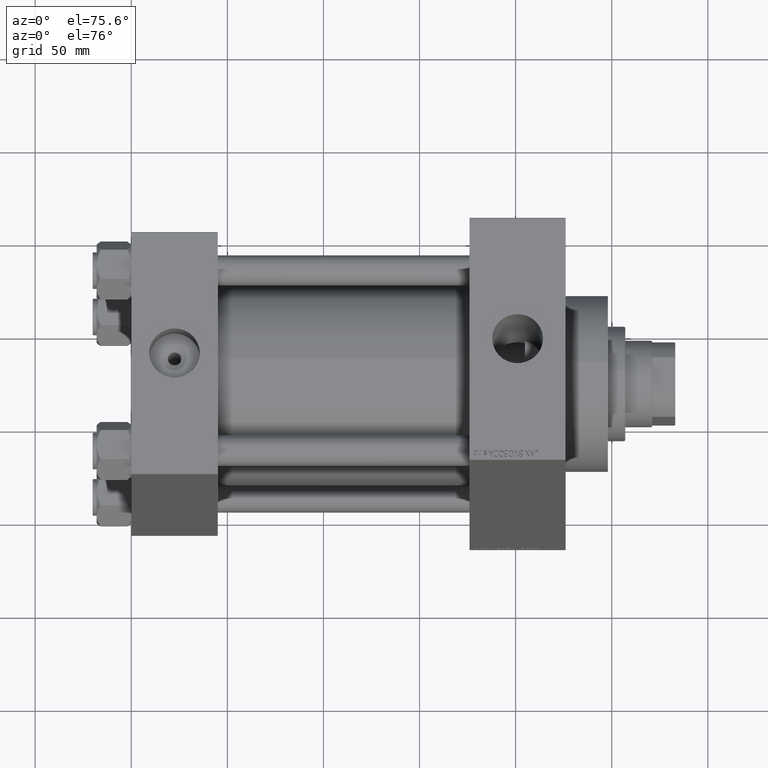
[diagram: clean part render]
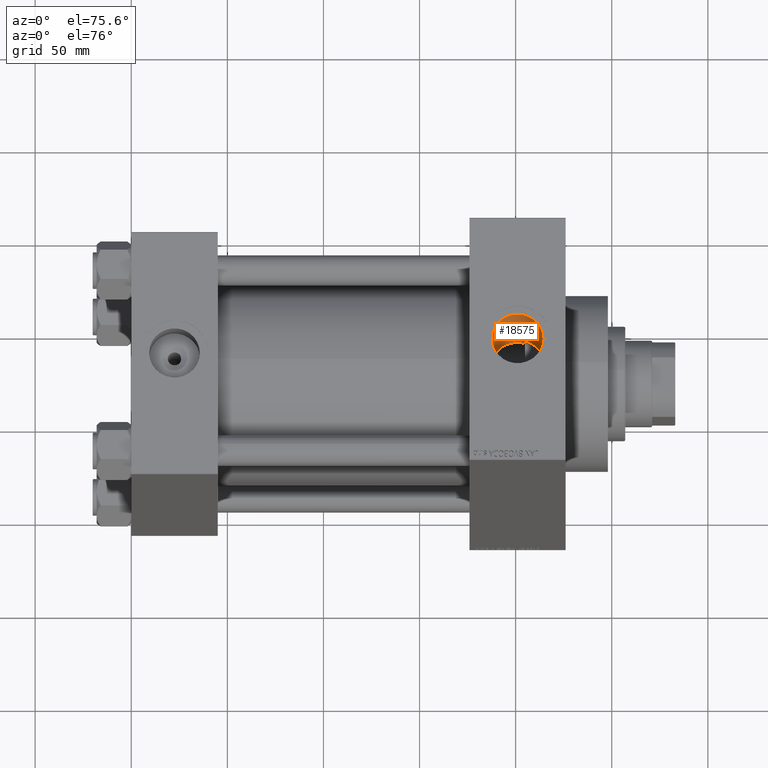
[diagram: same view with one face highlighted and labeled with its STEP entity id]
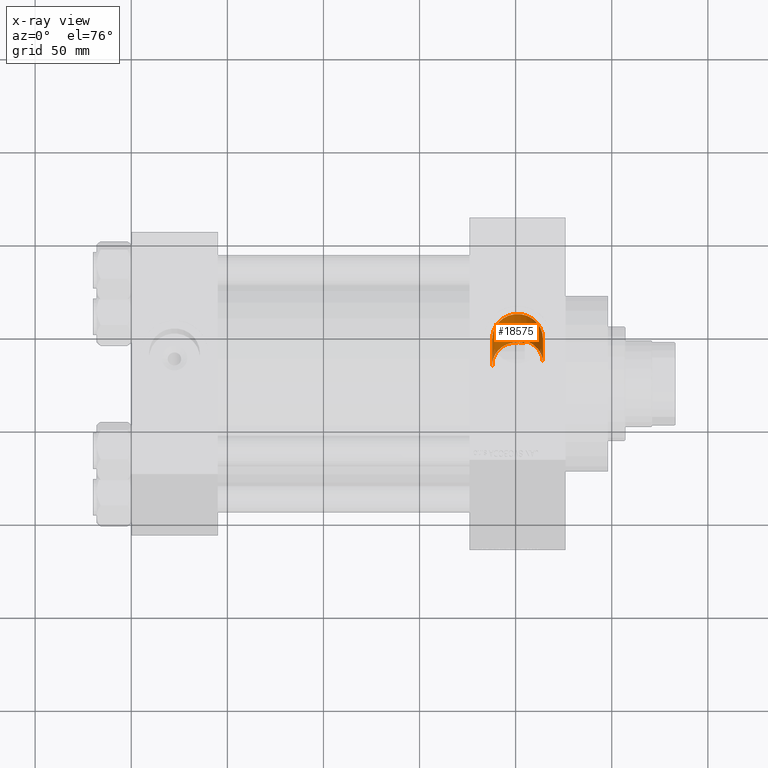
[diagram: x-ray of the same camera — body ghosted, the highlighted face saturated]
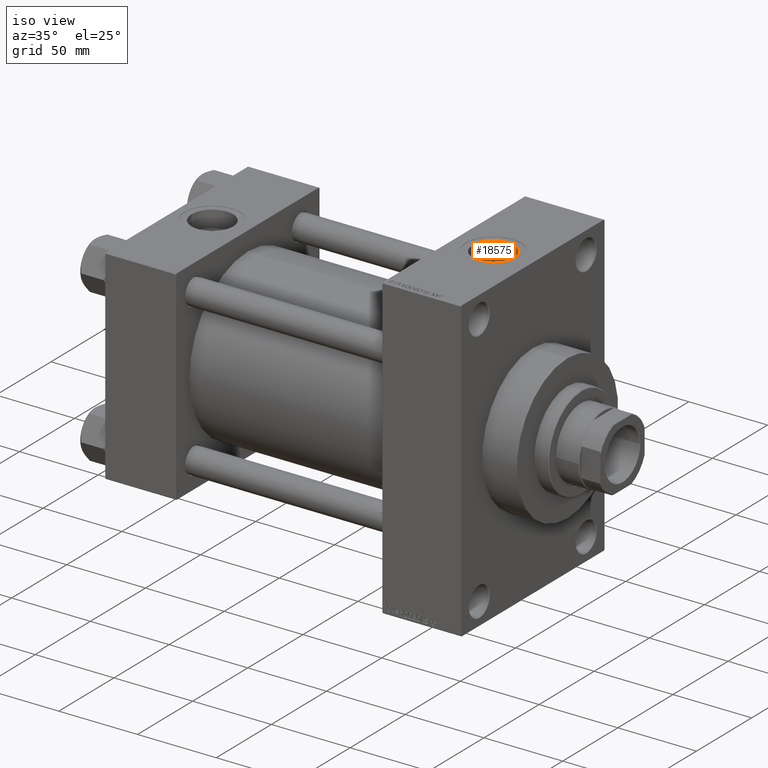
[diagram: same view with one face highlighted and labeled with its STEP entity id]
A machine part, auxiliary view. The second image highlights one B-rep face of the part: STEP entity #18575.
The next image is the same camera in x-ray: the body ghosted, the highlighted face saturated — about 3% of this face is hidden behind the body in this view.
A second angle (iso view) of the same face is appended — the face is thin or edge-on in the first view.
In plain terms, the highlighted cylindrical surface (edge-blend (fillet) strip) has radius 13.22 mm, axis along (0, 0, -1).
Its self-contained STEP definition (entity closure, byte-faithful):
#375 = CARTESIAN_POINT ( 'NONE',  ( 188.0207089073833515, 2.563288280031345234, 37.91676483506162043 ) ) ;
#519 = CARTESIAN_POINT ( 'NONE',  ( 207.3566742675306216, 11.61276551564071902, 41.14373320031093328 ) ) ;
#760 = CARTESIAN_POINT ( 'NONE',  ( 214.1627215507658377, 1.419340817186896642, 42.73218467206118021 ) ) ;
#990 = DIRECTION ( 'NONE',  ( 0.000000000000000000, 0.000000000000000000, -1.000000000000000000 ) ) ;
#1344 = CARTESIAN_POINT ( 'NONE',  ( 204.7399999999999807, 12.67993690836039455, 117.7999999999999545 ) ) ;
#2164 = B_SPLINE_CURVE_WITH_KNOTS ( 'NONE', 3,
 ( #22335, #25705, #7147, #15084, #375, #43520, #18001, #11242, #3526, #14137, #33622, #47630, #40859, #11475, #18949, #40152, #7622, #44473, #14848, #37010, #18475, #29066, #21864, #39919, #3997, #33155, #32680, #18712, #7856, #22098 ),
 .UNSPECIFIED., .F., .F.,
 ( 4, 2, 2, 2, 2, 2, 2, 2, 2, 2, 2, 2, 2, 2, 4 ),
 ( 0.04166013637941432673, 0.04319771166362021408, 0.04473528694782610143, 0.04781043751623787613, 0.04934801280044376348, 0.05088558808464965083, 0.05242316336885553818, 0.05396073865306142553, 0.05549831393726731288, 0.05703588922147320717, 0.06011103978988498187, 0.06164861507409087615, 0.06318619035829675656, 0.06472376564250265085, 0.06626134092670854514 ),
 .UNSPECIFIED. ) ;
#2603 = DIRECTION ( 'NONE',  ( 0.000000000000000000, 0.000000000000000000, -1.000000000000000000 ) ) ;
#3526 = CARTESIAN_POINT ( 'NONE',  ( 189.6766881679797336, 6.841684745575792093, 37.38151937335765496 ) ) ;
#3997 = CARTESIAN_POINT ( 'NONE',  ( 201.1929245059120035, 13.22853373566559476, 35.62312093936006363 ) ) ;
#4136 = CARTESIAN_POINT ( 'NONE',  ( 207.9652939437245323, 11.25862793121221017, 41.24295429618411646 ) ) ;
#4209 = CARTESIAN_POINT ( 'NONE',  ( 187.7799999999999443, 0.000000000000000000, 117.7999999999999545 ) ) ;
#4370 = CARTESIAN_POINT ( 'NONE',  ( 209.6671844818738748, 9.988618730331612738, 41.56733220482829694 ) ) ;
#4851 = CARTESIAN_POINT ( 'NONE',  ( 213.9920876238891196, 2.469797748352711597, 42.68003640910877294 ) ) ;
#5028 = DIRECTION ( 'NONE',  ( 1.000000000000000000, 0.000000000000000000, 0.000000000000000000 ) ) ;
#5507 = ORIENTED_EDGE ( 'NONE', *, *, #26174, .F. ) ;
#6221 = CYLINDRICAL_SURFACE ( 'NONE', #15614, 13.22000000000000952 ) ;
#6741 = VERTEX_POINT ( 'NONE', #47609 ) ;
#7147 = CARTESIAN_POINT ( 'NONE',  ( 187.8096871343878149, 1.024765291550095103, 37.98964051294835542 ) ) ;
#7622 = CARTESIAN_POINT ( 'NONE',  ( 193.8947888654770679, 11.15982616624254042, 36.32533863211517655 ) ) ;
#7856 = CARTESIAN_POINT ( 'NONE',  ( 204.2465992284542153, 12.82546751304065680, 35.77053558263883559 ) ) ;
#7994 = CARTESIAN_POINT ( 'NONE',  ( 213.3113288498327051, 4.868756459318224650, 42.47724650916214273 ) ) ;
#8666 = ORIENTED_EDGE ( 'NONE', *, *, #29664, .T. ) ;
#8703 = CARTESIAN_POINT ( 'NONE',  ( 210.6858958810278182, 9.024595134817783304, 41.78957529832796780 ) ) ;
#11242 = CARTESIAN_POINT ( 'NONE',  ( 189.4196655872703730, 6.397496821543481538, 37.46048315550976326 ) ) ;
#11475 = CARTESIAN_POINT ( 'NONE',  ( 192.2767444913754673, 9.946585948839683056, 36.67693463411973198 ) ) ;
#11855 = CARTESIAN_POINT ( 'NONE',  ( 211.7881170177278989, 7.649199120474212243, 42.06109021706770790 ) ) ;
#12014 = CARTESIAN_POINT ( 'NONE',  ( 204.7399999999999807, 12.67993690836039455, 35.82204907595320265 ) ) ;
#14137 = CARTESIAN_POINT ( 'NONE',  ( 190.2346256052195201, 7.689782515989663558, 37.21631209127709639 ) ) ;
#14478 = EDGE_CURVE ( 'NONE', #16394, #24266, #2164, .T. ) ;
#14848 = CARTESIAN_POINT ( 'NONE',  ( 195.2275989359078210, 11.90429981927680103, 36.08787882260793367 ) ) ;
#15084 = CARTESIAN_POINT ( 'NONE',  ( 187.9296438586280260, 2.049460351701852812, 37.94815730009317889 ) ) ;
#15461 = CARTESIAN_POINT ( 'NONE',  ( 214.2199999999999989, 0.7128280605864664166, 42.75000000000000000 ) ) ;
#15614 = AXIS2_PLACEMENT_3D ( 'NONE', #35611, #2603, #28383 ) ;
#15879 = VERTEX_POINT ( 'NONE', #32335 ) ;
#15908 = EDGE_CURVE ( 'NONE', #6741, #15879, #29901, .T. ) ;
#16394 = VERTEX_POINT ( 'NONE', #17875 ) ;
#16819 = ORIENTED_EDGE ( 'NONE', *, *, #47074, .T. ) ;
#17875 = CARTESIAN_POINT ( 'NONE',  ( 187.7799999999999443, 4.670198144118042837E-15, 38.00000000000000000 ) ) ;
#17936 = EDGE_CURVE ( 'NONE', #47053, #24266, #38452, .T. ) ;
#18001 = CARTESIAN_POINT ( 'NONE',  ( 188.7276034401946845, 5.021107990086664863, 37.67826336039710355 ) ) ;
#18475 = CARTESIAN_POINT ( 'NONE',  ( 197.6161393418148577, 12.82059544320182631, 35.77248578963131820 ) ) ;
#18575 = ADVANCED_FACE ( 'NONE', ( #24549 ), #6221, .F. ) ;
#18712 = CARTESIAN_POINT ( 'NONE',  ( 203.7394249595122631, 12.94326451559380509, 35.72786647778971769 ) ) ;
#18852 = CARTESIAN_POINT ( 'NONE',  ( 213.7498696806301268, 3.512400709947654853, 42.60688462453908443 ) ) ;
#18949 = CARTESIAN_POINT ( 'NONE',  ( 192.6646875080168115, 10.27358711865540997, 36.58624237847440241 ) ) ;
#19080 = CARTESIAN_POINT ( 'NONE',  ( 214.2199999999999704, 1.618983068472802532E-15, 117.7999999999999545 ) ) ;
#19088 = CARTESIAN_POINT ( 'NONE',  ( 212.3681678082569135, 6.757087634520164698, 42.21369697903652707 ) ) ;
#19331 = CARTESIAN_POINT ( 'NONE',  ( 205.4277657072452996, 12.47707755947820374, 40.88924255936937868 ) ) ;
#20376 = AXIS2_PLACEMENT_3D ( 'NONE', #26957, #38038, #5028 ) ;
#21864 = CARTESIAN_POINT ( 'NONE',  ( 199.6429904835856917, 13.16039151796706896, 35.64835659901555687 ) ) ;
#22098 = CARTESIAN_POINT ( 'NONE',  ( 204.7399999999999807, 12.67993690836039455, 35.82204907595320265 ) ) ;
#22335 = CARTESIAN_POINT ( 'NONE',  ( 187.7799999999999443, 4.670198144118042837E-15, 38.00000000000000000 ) ) ;
#22706 = CARTESIAN_POINT ( 'NONE',  ( 208.8392309499368764, 10.65085741936020902, 41.40248309854266040 ) ) ;
#23420 = CARTESIAN_POINT ( 'NONE',  ( 213.9210219195441027, 2.818391061395469244, 42.65841356615450053 ) ) ;
#23776 = DIRECTION ( 'NONE',  ( 0.000000000000000000, 0.000000000000000000, -1.000000000000000000 ) ) ;
#24266 = VERTEX_POINT ( 'NONE', #12014 ) ;
#24549 = FACE_OUTER_BOUND ( 'NONE', #46445, .T. ) ;
#24931 = B_SPLINE_CURVE_WITH_KNOTS ( 'NONE', 3,
 ( #38098, #19331, #37381, #519, #4136, #22706, #34240, #4370, #37147, #8703, #40999, #11855, #34004, #19088, #44855, #44613, #7994, #33765, #18852, #23420, #4851, #760, #15461, #30150 ),
 .UNSPECIFIED., .F., .F.,
 ( 4, 2, 2, 2, 2, 2, 2, 2, 2, 2, 2, 4 ),
 ( 0.000000000000000000, 0.002127714298774668368, 0.004255428597549336736, 0.005319285746936637527, 0.006383142896323938317, 0.008510857195098543368, 0.009574714344485873649, 0.01063857149387320566, 0.01276628579264786796, 0.01383014294203519998, 0.01489400009142253199, 0.01702171439019718388 ),
 .UNSPECIFIED. ) ;
#25705 = CARTESIAN_POINT ( 'NONE',  ( 187.7799999999999727, 0.5123942091390818465, 38.00000000000000000 ) ) ;
#26174 = EDGE_CURVE ( 'NONE', #34844, #6741, #40343, .T. ) ;
#26957 = CARTESIAN_POINT ( 'NONE',  ( 200.9999999999999432, 0.000000000000000000, 94.79999999999996874 ) ) ;
#27558 = CARTESIAN_POINT ( 'NONE',  ( 187.7799999999999443, 0.000000000000000000, 94.79999999999996874 ) ) ;
#28383 = DIRECTION ( 'NONE',  ( -1.000000000000000000, 0.000000000000000000, 0.000000000000000000 ) ) ;
#29066 = CARTESIAN_POINT ( 'NONE',  ( 199.1279962358461546, 13.09681056689220213, 35.67188185037125692 ) ) ;
#29664 = EDGE_CURVE ( 'NONE', #34844, #16394, #37697, .T. ) ;
#29901 = LINE ( 'NONE', #19080, #44747 ) ;
#29941 = ORIENTED_EDGE ( 'NONE', *, *, #15908, .F. ) ;
#30150 = CARTESIAN_POINT ( 'NONE',  ( 214.2199999999999704, 5.235365066362932155E-15, 42.75000000000000000 ) ) ;
#30221 = DIRECTION ( 'NONE',  ( 0.000000000000000000, 0.000000000000000000, -1.000000000000000000 ) ) ;
#31128 = ORIENTED_EDGE ( 'NONE', *, *, #17936, .F. ) ;
#32335 = CARTESIAN_POINT ( 'NONE',  ( 214.2199999999999704, 5.235365066362932155E-15, 42.75000000000000000 ) ) ;
#32498 = VECTOR ( 'NONE', #23776, 1000.000000000000000 ) ;
#32680 = CARTESIAN_POINT ( 'NONE',  ( 202.7262910150043638, 13.11687709635734578, 35.66449319161085896 ) ) ;
#33155 = CARTESIAN_POINT ( 'NONE',  ( 202.2169889944972851, 13.17384767058950601, 35.64338070116271240 ) ) ;
#33622 = CARTESIAN_POINT ( 'NONE',  ( 190.5365498440031047, 8.095730104901395663, 37.12974234449203692 ) ) ;
#33765 = CARTESIAN_POINT ( 'NONE',  ( 213.6496243838041948, 3.857681275829317968, 42.57693607211754738 ) ) ;
#34004 = CARTESIAN_POINT ( 'NONE',  ( 211.9906410470004232, 7.355221410213304445, 42.11359832578121853 ) ) ;
#34240 = CARTESIAN_POINT ( 'NONE',  ( 209.1227174788365915, 10.43618952212770878, 41.45722565518244807 ) ) ;
#34844 = VERTEX_POINT ( 'NONE', #27558 ) ;
#35076 = VECTOR ( 'NONE', #30221, 1000.000000000000000 ) ;
#35611 = CARTESIAN_POINT ( 'NONE',  ( 200.9999999999999432, 0.000000000000000000, 117.7999999999999545 ) ) ;
#36917 = CARTESIAN_POINT ( 'NONE',  ( 204.7399999999999807, 12.67993690836039455, 40.82623788692756506 ) ) ;
#37010 = CARTESIAN_POINT ( 'NONE',  ( 196.6411868225752926, 12.52307552529215151, 35.87982703132361451 ) ) ;
#37147 = CARTESIAN_POINT ( 'NONE',  ( 209.9292914793963973, 9.754948885942500425, 41.62290027704880657 ) ) ;
#37381 = CARTESIAN_POINT ( 'NONE',  ( 206.0879043388672471, 12.22198265844279952, 40.96689205292911140 ) ) ;
#37697 = LINE ( 'NONE', #4209, #35076 ) ;
#38038 = DIRECTION ( 'NONE',  ( -0.000000000000000000, -0.000000000000000000, -1.000000000000000000 ) ) ;
#38098 = CARTESIAN_POINT ( 'NONE',  ( 204.7399999999999807, 12.67993690836039455, 40.82623788692756506 ) ) ;
#38452 = LINE ( 'NONE', #1344, #32498 ) ;
#39919 = CARTESIAN_POINT ( 'NONE',  ( 200.6781624700284397, 13.22625420661951345, 35.62397272594166253 ) ) ;
#40152 = CARTESIAN_POINT ( 'NONE',  ( 193.4737087384339702, 10.88020985411995767, 36.41044846182737871 ) ) ;
#40343 = CIRCLE ( 'NONE', #20376, 13.22000000000000952 ) ;
#40859 = CARTESIAN_POINT ( 'NONE',  ( 191.5346530381057448, 9.243211865870183175, 36.86048209934023845 ) ) ;
#40999 = CARTESIAN_POINT ( 'NONE',  ( 211.1508856579517328, 8.498775455946677937, 41.90066282866281000 ) ) ;
#43520 = CARTESIAN_POINT ( 'NONE',  ( 188.3778971728958140, 4.062892629112893950, 37.79548799711346163 ) ) ;
#44473 = CARTESIAN_POINT ( 'NONE',  ( 194.7708974169248961, 11.67150488739251202, 36.16418007451798644 ) ) ;
#44613 = CARTESIAN_POINT ( 'NONE',  ( 213.0344437705743417, 5.516867045286189430, 42.39720841868734169 ) ) ;
#44747 = VECTOR ( 'NONE', #990, 1000.000000000000000 ) ;
#44855 = CARTESIAN_POINT ( 'NONE',  ( 212.5441554628929453, 6.451719876449954150, 42.26153051605047040 ) ) ;
#45009 = ORIENTED_EDGE ( 'NONE', *, *, #14478, .T. ) ;
#46445 = EDGE_LOOP ( 'NONE', ( #29941, #5507, #8666, #45009, #31128, #16819 ) ) ;
#47053 = VERTEX_POINT ( 'NONE', #36917 ) ;
#47074 = EDGE_CURVE ( 'NONE', #47053, #15879, #24931, .T. ) ;
#47609 = CARTESIAN_POINT ( 'NONE',  ( 214.2199999999999704, 1.618983068472802926E-15, 94.79999999999996874 ) ) ;
#47630 = CARTESIAN_POINT ( 'NONE',  ( 191.1862536335408436, 8.872148406854298841, 36.95190922194040439 ) ) ;